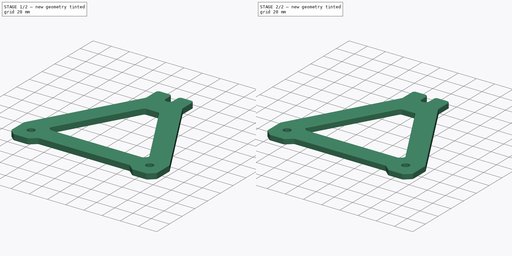
[diagram: build sequence overview — one tinted view per stage of 2, left to right]
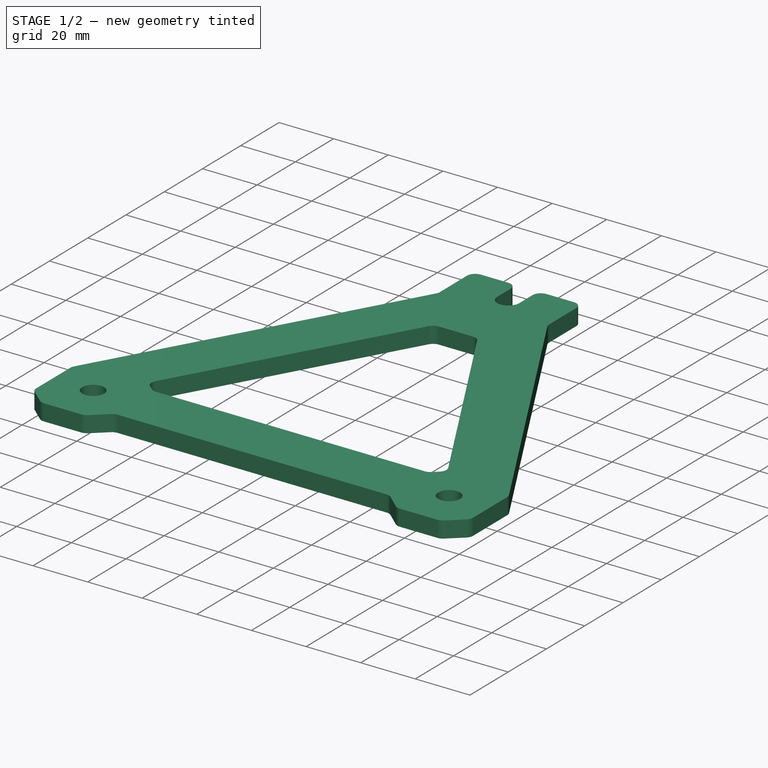
[diagram: stage 1 of 2 — iso view after this stage's code; geometry added in this stage tinted green]
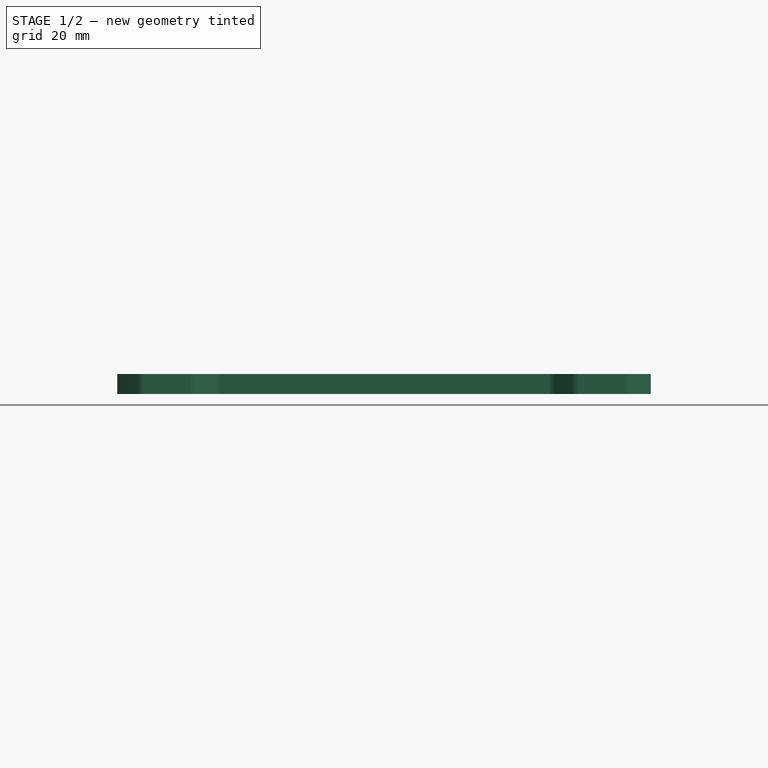
[diagram: stage 1 of 2 — front view after this stage's code; geometry added in this stage tinted green]
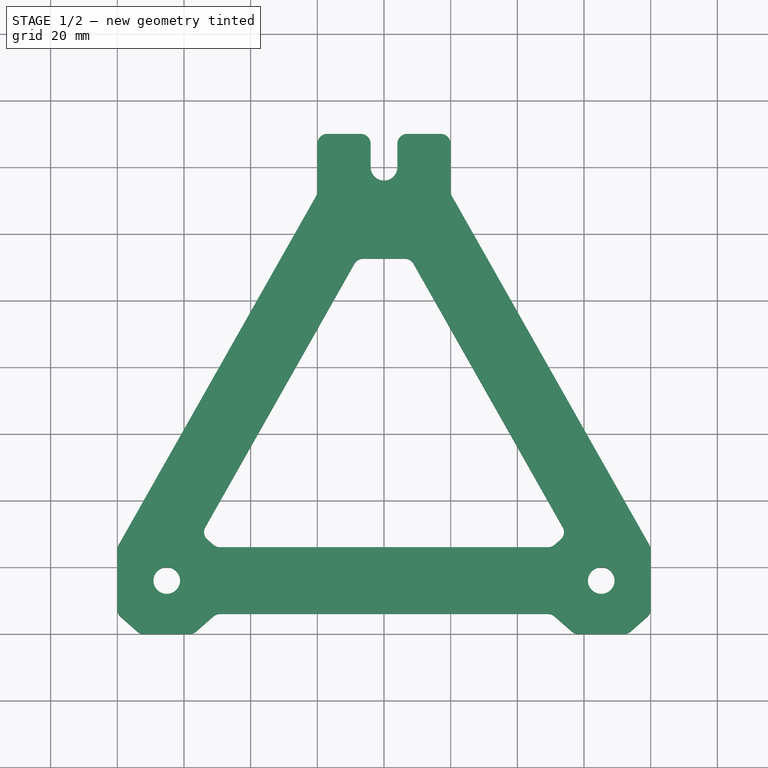
[diagram: stage 1 of 2 — top view after this stage's code; geometry added in this stage tinted green]
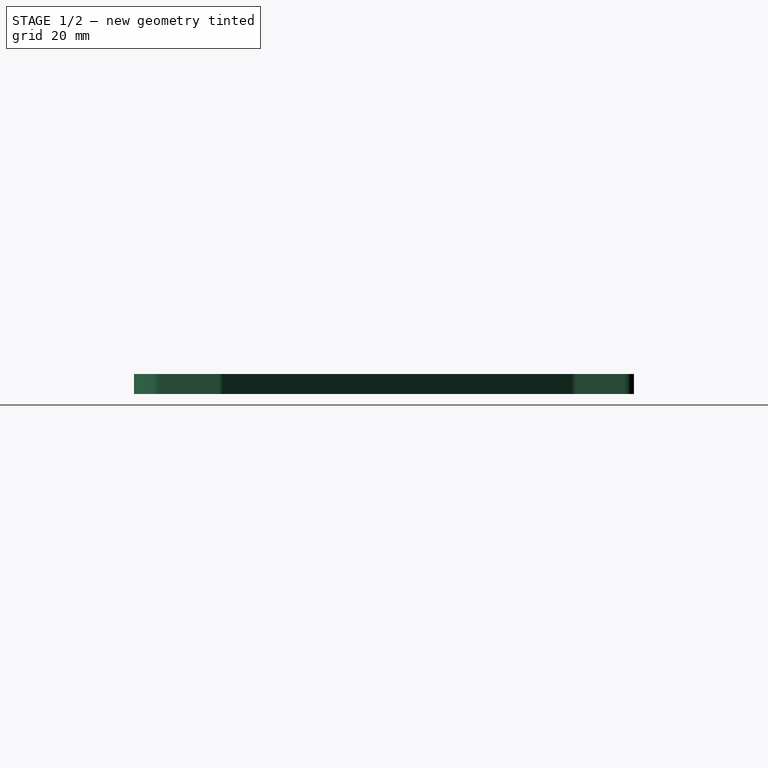
[diagram: stage 1 of 2 — right view after this stage's code; geometry added in this stage tinted green]
FCSTD DOCUMENT  (FreeCAD 0.16R6712 (Git))
Label: spool-holder
License: All rights reserved
LicenseURL: http://en.wikipedia.org/wiki/All_rights_reserved
objects: Part::Fillet×2, Sketcher::SketchObject×1, PartDesign::Pad×1
note: 5 computed .brp shape members not serialized (recipe doc carries the construction recipe); baked Part::Feature solids carry a one-line shape summary decoded from their .brp

FEATURE [Sketcher::SketchObject] Sketch
  sketch-geometry (35):
    g0: LineSegment StartX=-20 StartY=132 StartZ=0 EndX=-80 EndY=26 EndZ=0
    g1: LineSegment StartX=-80 StartY=26 StartZ=0 EndX=-80 EndY=6 EndZ=0
    g2: LineSegment StartX=-73.1676 StartY=0 StartZ=0 EndX=-57.1676 EndY=0 EndZ=0
    g3: LineSegment StartX=-57.1676 StartY=0 StartZ=0 EndX=-50.3352 EndY=6 EndZ=0
    g4: LineSegment StartX=-50.3352 StartY=6 StartZ=0 EndX=50.3352 EndY=6 EndZ=0
    g5: LineSegment StartX=50.3352 StartY=6 StartZ=0 EndX=57.1676 EndY=0 EndZ=0
    g6: LineSegment StartX=57.1676 StartY=0 StartZ=0 EndX=73.1676 EndY=0 EndZ=0
    g7: LineSegment StartX=80 StartY=6 StartZ=0 EndX=80 EndY=26 EndZ=0
    g8: LineSegment StartX=80 StartY=26 StartZ=0 EndX=20 EndY=132 EndZ=0
    g9: Circle CenterX=-65.1676 CenterY=16 CenterZ=0 NormalX=0 NormalY=0 NormalZ=1 Radius=4
    g10: Circle CenterX=65.1676 CenterY=16 CenterZ=0 NormalX=0 NormalY=0 NormalZ=1 Radius=4
    g11: LineSegment StartX=73.1676 StartY=0 StartZ=0 EndX=80 EndY=6 EndZ=0
    g12: LineSegment StartX=-80 StartY=6 StartZ=0 EndX=-73.1676 EndY=0 EndZ=0
    g13: LineSegment [constr] StartX=-80 StartY=6 StartZ=0 EndX=-50.3352 EndY=6 EndZ=0
    g14: LineSegment [constr] StartX=50.3352 StartY=6 StartZ=0 EndX=80 EndY=6 EndZ=0
    g15: LineSegment [constr] StartX=-73.1676 StartY=0 StartZ=0 EndX=-65.1676 EndY=16 EndZ=0
    g16: LineSegment [constr] StartX=-65.1676 StartY=16 StartZ=0 EndX=-57.1676 EndY=0 EndZ=0
    g17: LineSegment StartX=-54.7993 StartY=29.9202 StartZ=0 EndX=-8 EndY=112.599 EndZ=0
    g18: LineSegment StartX=-8 StartY=112.599 StartZ=0 EndX=8 EndY=112.599 EndZ=0
    g19: LineSegment StartX=8 StartY=112.599 StartZ=0 EndX=54.7993 EndY=29.9202 EndZ=0
    g20: LineSegment StartX=54.7993 StartY=29.9202 StartZ=0 EndX=50.3352 EndY=26 EndZ=0
    g21: LineSegment StartX=50.3352 StartY=26 StartZ=0 EndX=-50.3352 EndY=26 EndZ=0
    g22: LineSegment StartX=-50.3352 StartY=26 StartZ=0 EndX=-54.7993 EndY=29.9202 EndZ=0
    g23: LineSegment [constr] StartX=-50.3352 StartY=26 StartZ=0 EndX=-50.3352 EndY=6 EndZ=0
    g24: LineSegment [constr] StartX=-80 StartY=26 StartZ=0 EndX=-65.1676 EndY=16 EndZ=0
    g25: LineSegment [constr] StartX=-65.1676 StartY=16 StartZ=0 EndX=-80 EndY=6 EndZ=0
    g26: ArcOfCircle CenterX=0 CenterY=140 CenterZ=0 NormalX=0 NormalY=0 NormalZ=1 Radius=4 StartAngle=3.14159 EndAngle=6.28319
    g27: LineSegment StartX=-20 StartY=132 StartZ=0 EndX=-20 EndY=150 EndZ=0
    g28: LineSegment StartX=-20 StartY=150 StartZ=0 EndX=-4 EndY=150 EndZ=0
    g29: LineSegment StartX=-4 StartY=150 StartZ=0 EndX=-4 EndY=140 EndZ=0
    g30: LineSegment StartX=4 StartY=140 StartZ=0 EndX=4 EndY=150 EndZ=0
    g31: LineSegment StartX=4 StartY=150 StartZ=0 EndX=20 EndY=150 EndZ=0
    g32: LineSegment StartX=20 StartY=132 StartZ=0 EndX=20 EndY=150 EndZ=0
    g33: LineSegment [constr] StartX=-4 StartY=150 StartZ=0 EndX=4 EndY=150 EndZ=0
    g34: LineSegment [constr] StartX=-54.7993 StartY=29.9202 StartZ=0 EndX=-72.2044 EndY=39.7722 EndZ=0
  constraints (96):
    c: Coincident(g0,g1)
    c: Vertical(g1)
    c: Horizontal(g2)
    c: Coincident(g2,g3)
    c: Coincident(g3,g4)
    c: Coincident(g4,g5)
    c: Coincident(g5,g6)
    c: Horizontal(g6)
    c: Coincident(g7,g8)
    c: PointOnObject(g6,g-1)
    c: Vertical(g7)
    c: Equal(g0,g8)
    c: Coincident(g11,g6)
    c: Coincident(g11,g7)
    c: Coincident(g12,g1)
    c: Coincident(g12,g2)
    c: Equal(g3,g5)
    c: Equal(g5,g11)
    c: Coincident(g13,g1)
    c: Coincident(g13,g3)
    c: Horizontal(g13)
    c: Coincident(g14,g4)
    c: Coincident(g14,g7)
    c: Horizontal(g14)
    c: Equal(g2,g6)
    c: Distance(g1,g7) = 160
    c: Symmetric(g9,g10,g-2)
    c: PointOnObject(g2,g-1)
    c: Coincident(g15,g2)
    c: Coincident(g15,g9)
    c: Coincident(g16,g9)
    c: Coincident(g16,g2)
    c: Equal(g16,g15)
    c: Symmetric(g3,g4,g-2)
    c: Distance(g2) = 16
    c: Coincident(g17,g18)
    c: Horizontal(g18)
    c: Coincident(g18,g19)
    c: Coincident(g19,g20)
    c: Coincident(g20,g21)
    c: Horizontal(g21)
    c: Coincident(g21,g22)
    c: Coincident(g22,g17)
    c: Coincident(g23,g21)
    c: Coincident(g23,g3)
    c: Vertical(g23)
    c: Parallel(g17,g0)
    c: Parallel(g19,g8)
    c: Equal(g23,g1)
    c: Coincident(g24,g0)
    c: Coincident(g24,g9)
    c: Coincident(g25,g9)
    c: Coincident(g25,g1)
    c: Equal(g21,g4)
    c: Equal(g7,g1)
    c: Coincident(g0,g27)
    c: Vertical(g27)
    c: Coincident(g27,g28)
    c: Horizontal(g28)
    c: Coincident(g28,g29)
    c: Coincident(g29,g26)
    c: Coincident(g30,g26)
    c: Vertical(g30)
    c: Coincident(g31,g30)
    c: Horizontal(g31)
    c: Coincident(g32,g8)
    c: Coincident(g32,g31)
    c: Vertical(g32)
    c: Vertical(g29)
    c: Coincident(g33,g28)
    c: Coincident(g33,g30)
    c: Horizontal(g33)
    c: Radius(g26) = 4
    c: PointOnObject(g26,g-2)
    c: Distance(g-1,g26) = 140
    c: Equal(g28,g31)
    c: Tangent(g26,g30)
    c: Tangent(g29,g26)
    c: Distance(g31,g27) = 40
    c: Coincident(g34,g17)
    c: PointOnObject(g34,g0)
    c: Perpendicular(g0,g34)
    c: Distance(g34) = 20
    c: Equal(g22,g20)
    c: Symmetric(g17,g19,g-2)
    c: Equal(g23,g34)
    c: DistanceY(g-1,g27) = 150
    c: Distance(g27) = 18
    c: Parallel(g12,g22)
    c: Equal(g11,g12)
    c: Equal(g15,g25)
    c: Equal(g24,g25)
    c: DistanceY(g-1,g9) = 16
    c: Radius(g9) = 4
    c: Equal(g9,g10)
    c: Distance(g18) = 16
FEATURE [PartDesign::Pad] Pad
  Length = 6
  Length2 = 100
  Sketch = -> Sketch
  Type = 0
FEATURE [Part::Fillet] Fillet
  Base = -> Pad
  Edges = 22 edges r=3: [Edge1,Edge2,Edge5,Edge8,Edge11,Edge14,Edge17,Edge20,Edge23,Edge26,Edge29,Edge32,Edge35,Edge38,Edge47,Edge50,Edge55,Edge56,Edge59,Edge62,Edge65,Edge68]
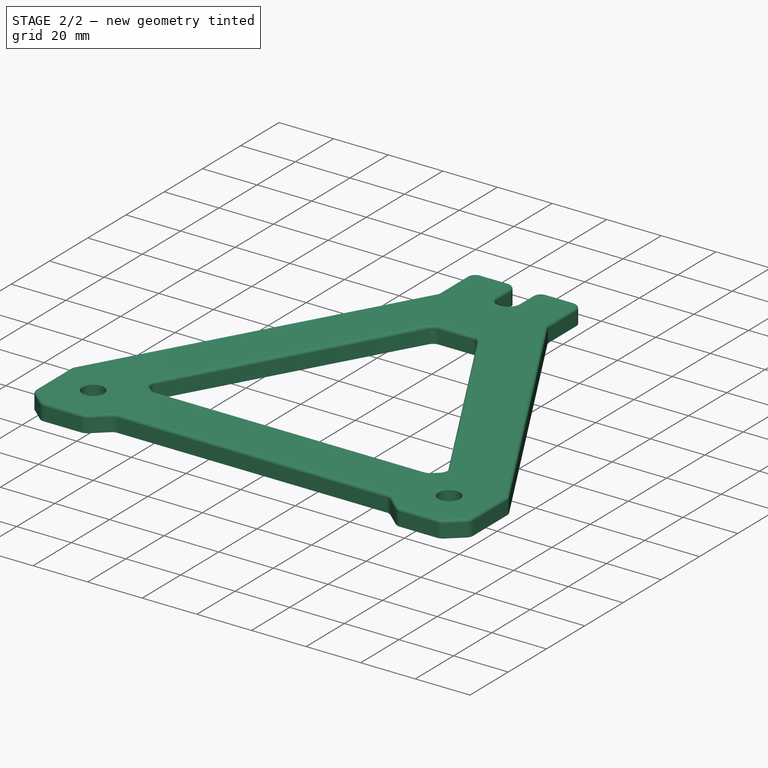
[diagram: stage 2 of 2 — iso view after this stage's code; geometry added in this stage tinted green]
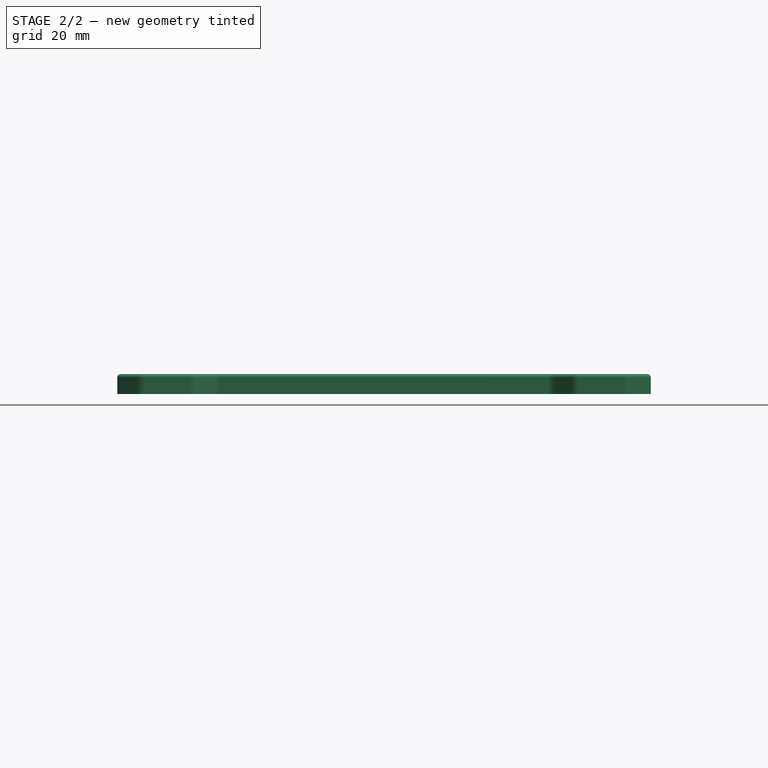
[diagram: stage 2 of 2 — front view after this stage's code; geometry added in this stage tinted green]
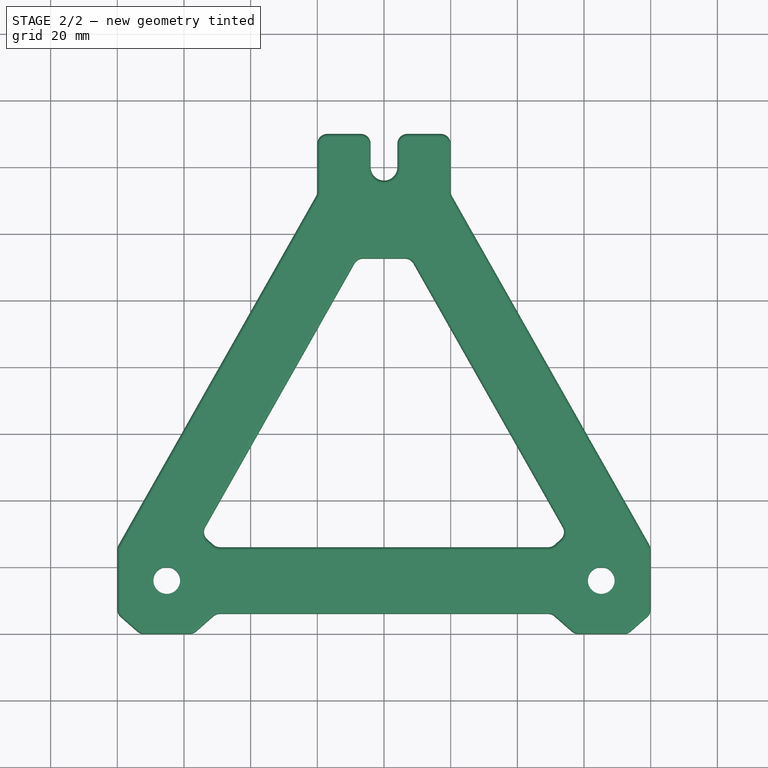
[diagram: stage 2 of 2 — top view after this stage's code; geometry added in this stage tinted green]
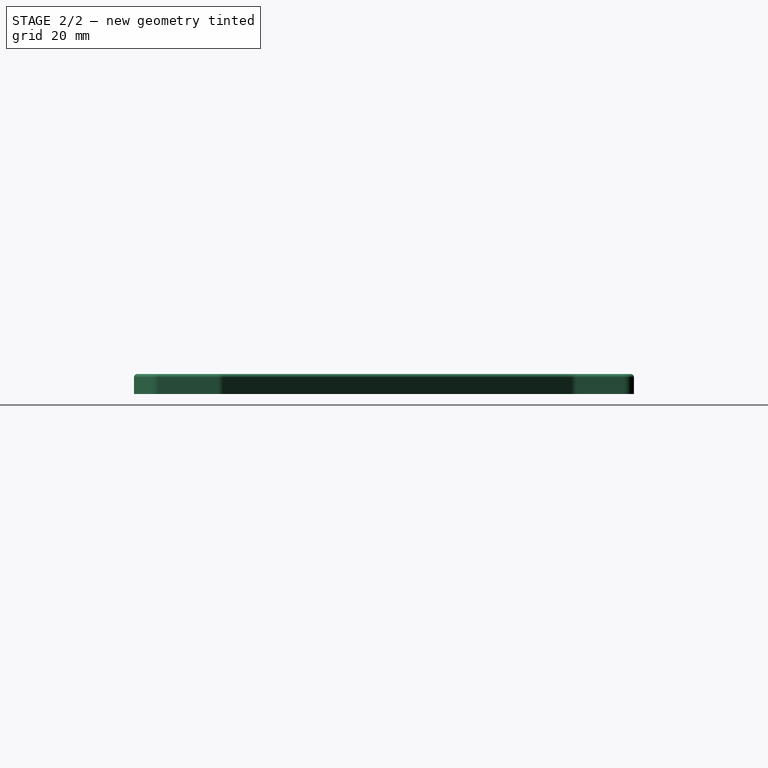
[diagram: stage 2 of 2 — right view after this stage's code; geometry added in this stage tinted green]
FEATURE [Part::Fillet] Fillet001
  Base = -> Fillet
  Edges = 2 edges r=1: [Edge4,Edge89]
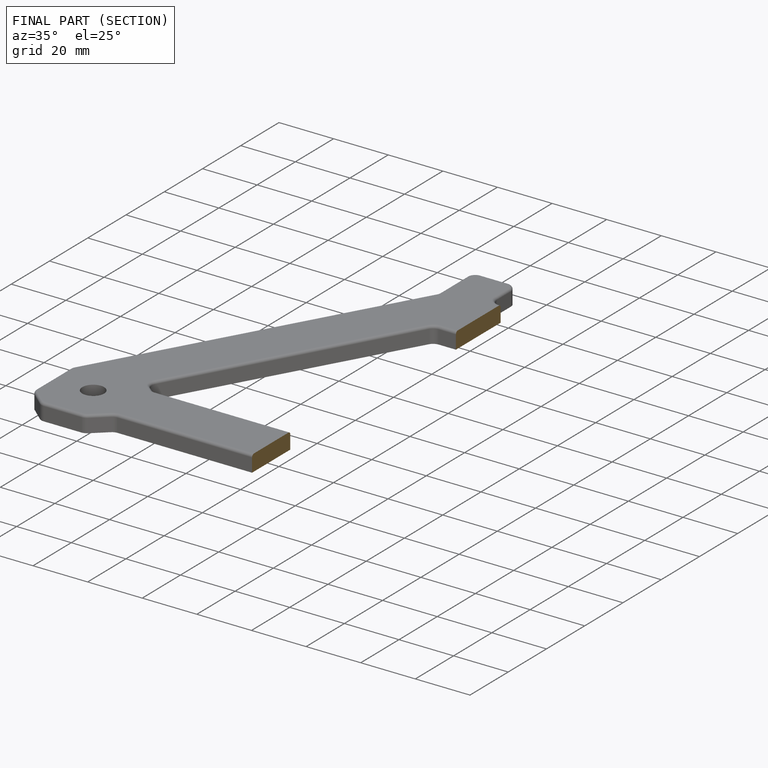
[diagram: finished part — half-section view (interior)]
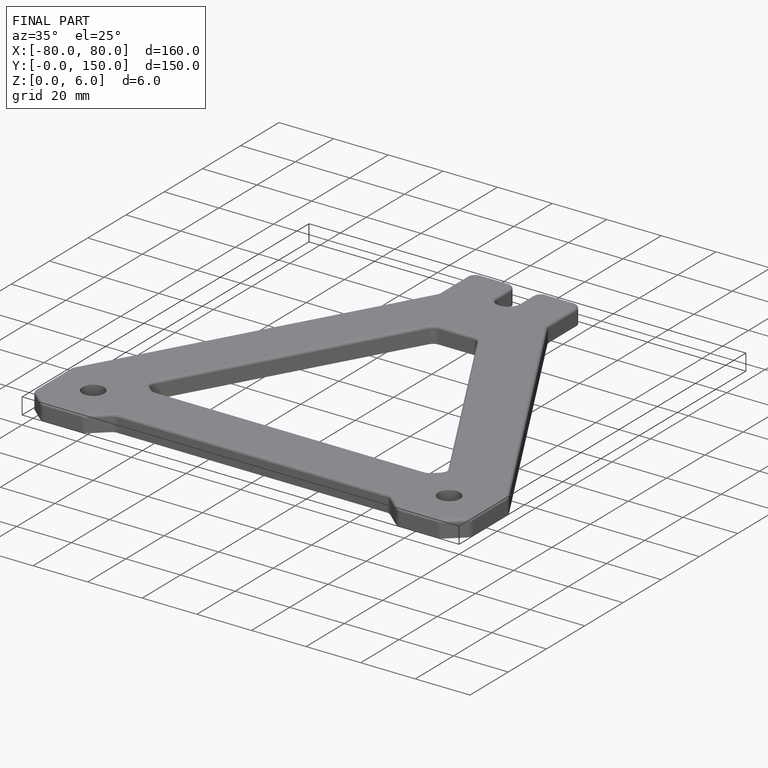
[diagram: finished part — iso view with bounding-box wireframe]
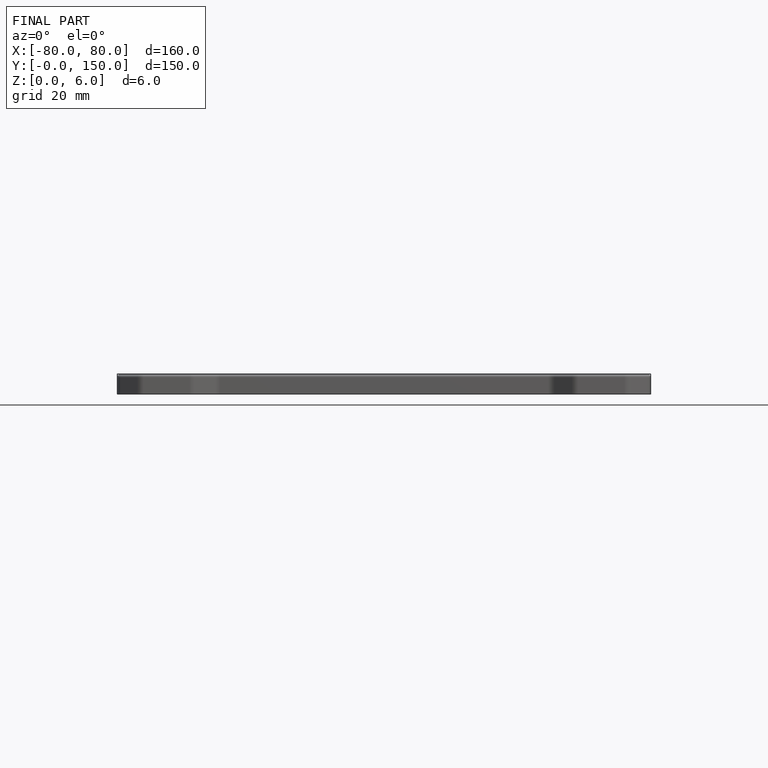
[diagram: finished part — front view with bounding-box wireframe]
